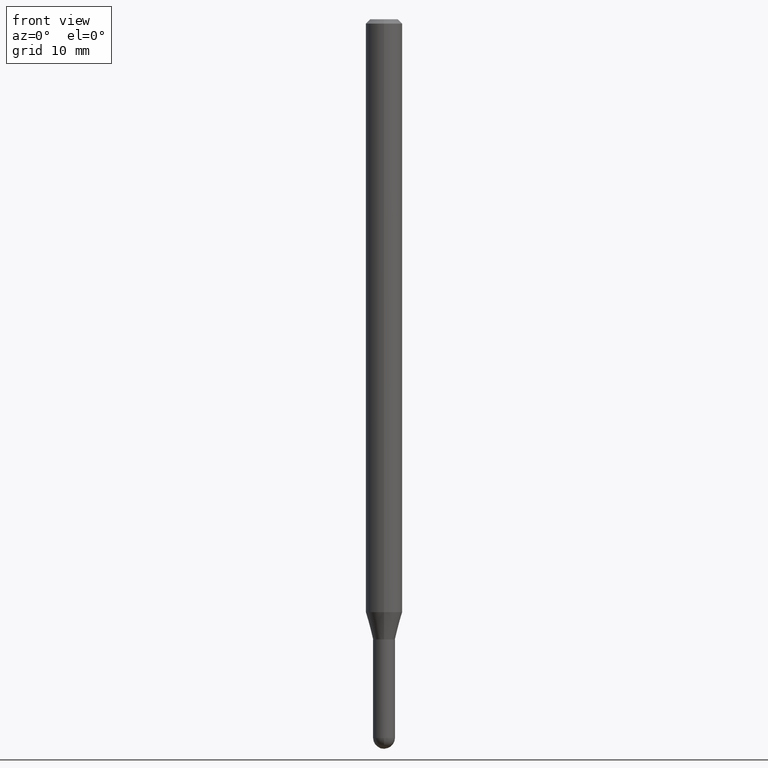
[diagram: clean part render]
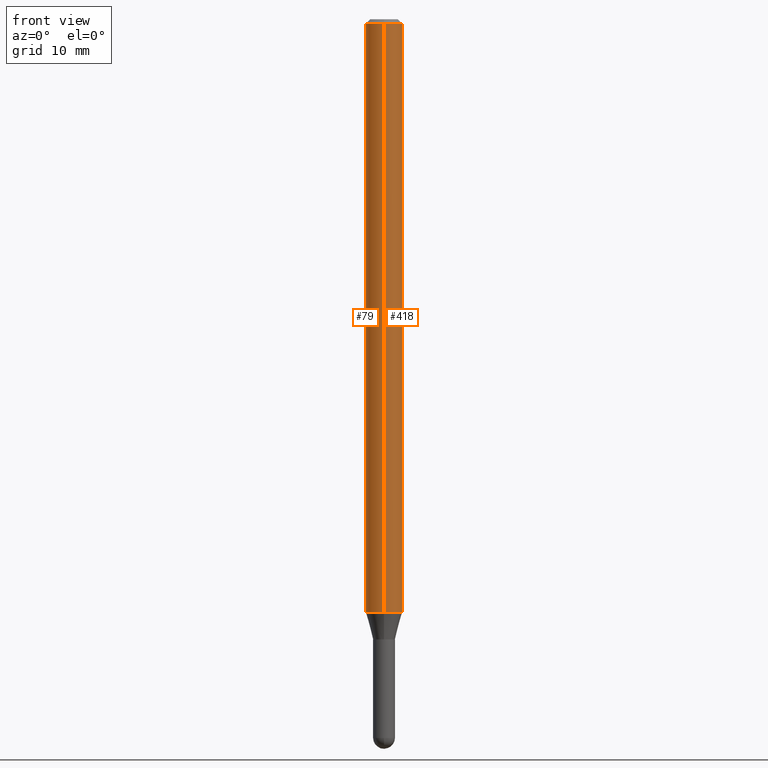
[diagram: same view with one multi-face feature highlighted, each face labeled with its STEP entity id]
A machine part, front view. The highlighted faces form ONE feature: a constant-radius fillet chain: 2 tangent blend faces with common blend radius 1.5875 mm. The faces share edges in the B-rep.
Their STEP definitions:
[1] entity #418 (Cylinder):
#9 = VERTEX_POINT ( 'NONE', #422 ) ;
#10 = CIRCLE ( 'NONE', #150, 0.06250000000000000000 ) ;
#11 = ORIENTED_EDGE ( 'NONE', *, *, #103, .T. ) ;
#47 = FACE_OUTER_BOUND ( 'NONE', #142, .T. ) ;
#48 = EDGE_CURVE ( 'NONE', #9, #226, #148, .T. ) ;
#61 = DIRECTION ( 'NONE',  ( -6.982962677686265922E-15, -1.000000000000000000, 4.370956789862821150E-15 ) ) ;
#74 = LINE ( 'NONE', #440, #400 ) ;
#86 = VECTOR ( 'NONE', #203, 39.37007874015748143 ) ;
#97 = DIRECTION ( 'NONE',  ( -2.445547336512034446E-29, 3.491368878945359210E-15, 1.000000000000000000 ) ) ;
#98 = CARTESIAN_POINT ( 'NONE',  ( 4.440892098501120186E-16, 0.06249999999999287376, -2.031698729810781145 ) ) ;
#103 = EDGE_CURVE ( 'NONE', #226, #408, #74, .T. ) ;
#108 = CARTESIAN_POINT ( 'NONE',  ( 3.668321004768067731E-31, -5.237053318418061988E-17, -0.01500000000000006710 ) ) ;
#142 = EDGE_LOOP ( 'NONE', ( #304, #11, #379, #347 ) ) ;
#148 = CIRCLE ( 'NONE', #436, 0.06250000000000000000 ) ;
#150 = AXIS2_PLACEMENT_3D ( 'NONE', #108, #97, #152 ) ;
#152 = DIRECTION ( 'NONE',  ( -6.982962677686265922E-15, -1.000000000000000000, 3.483106191921935554E-15 ) ) ;
#156 = DIRECTION ( 'NONE',  ( -6.982962677686265922E-15, -1.000000000000000000, 3.491368878945359210E-15 ) ) ;
#203 = DIRECTION ( 'NONE',  ( -2.445547336512034446E-29, 3.491368878945359605E-15, 1.000000000000000000 ) ) ;
#226 = VERTEX_POINT ( 'NONE', #98 ) ;
#274 = CYLINDRICAL_SURFACE ( 'NONE', #290, 0.06250000000000000000 ) ;
#290 = AXIS2_PLACEMENT_3D ( 'NONE', #434, #335, #156 ) ;
#304 = ORIENTED_EDGE ( 'NONE', *, *, #48, .T. ) ;
#318 = CARTESIAN_POINT ( 'NONE',  ( -4.364351673553916201E-16, -0.06250000000000000000, 2.182105549340849507E-16 ) ) ;
#331 = VERTEX_POINT ( 'NONE', #415 ) ;
#335 = DIRECTION ( 'NONE',  ( -2.445547336512034446E-29, 3.491368878945359210E-15, 1.000000000000000000 ) ) ;
#344 = DIRECTION ( 'NONE',  ( -2.445547336512034446E-29, 3.491368878945359210E-15, 1.000000000000000000 ) ) ;
#347 = ORIENTED_EDGE ( 'NONE', *, *, #508, .F. ) ;
#379 = ORIENTED_EDGE ( 'NONE', *, *, #433, .F. ) ;
#400 = VECTOR ( 'NONE', #467, 39.37007874015748143 ) ;
#408 = VERTEX_POINT ( 'NONE', #446 ) ;
#415 = CARTESIAN_POINT ( 'NONE',  ( -4.364351673553912750E-16, -0.06250000000000005551, -0.01499999999999984852 ) ) ;
#418 = ADVANCED_FACE ( 'NONE', ( #47 ), #274, .T. ) ;
#422 = CARTESIAN_POINT ( 'NONE',  ( -4.364351673553422177E-16, -0.06250000000000713318, -2.031698729810780701 ) ) ;
#433 = EDGE_CURVE ( 'NONE', #331, #408, #10, .T. ) ;
#434 = CARTESIAN_POINT ( 'NONE',  ( 0.000000000000000000, 0.000000000000000000, 0.000000000000000000 ) ) ;
#436 = AXIS2_PLACEMENT_3D ( 'NONE', #492, #344, #61 ) ;
#439 = LINE ( 'NONE', #318, #86 ) ;
#440 = CARTESIAN_POINT ( 'NONE',  ( 4.440892098500625669E-16, 0.06250000000000000000, -2.182105549340849507E-16 ) ) ;
#446 = CARTESIAN_POINT ( 'NONE',  ( 4.440892098501125116E-16, 0.06249999999999993755, -0.01500000000000028394 ) ) ;
#467 = DIRECTION ( 'NONE',  ( -2.445547336512034446E-29, 3.491368878945359605E-15, 1.000000000000000000 ) ) ;
#492 = CARTESIAN_POINT ( 'NONE',  ( 4.968615417283638285E-29, -7.093409716654176905E-15, -2.031698729810781145 ) ) ;
#508 = EDGE_CURVE ( 'NONE', #9, #331, #439, .T. ) ;
[2] entity #79 (Cylinder):
#9 = VERTEX_POINT ( 'NONE', #422 ) ;
#49 = ORIENTED_EDGE ( 'NONE', *, *, #508, .T. ) ;
#56 = AXIS2_PLACEMENT_3D ( 'NONE', #366, #482, #378 ) ;
#59 = FACE_OUTER_BOUND ( 'NONE', #222, .T. ) ;
#74 = LINE ( 'NONE', #440, #400 ) ;
#79 = ADVANCED_FACE ( 'NONE', ( #59 ), #228, .T. ) ;
#86 = VECTOR ( 'NONE', #203, 39.37007874015748143 ) ;
#98 = CARTESIAN_POINT ( 'NONE',  ( 4.440892098501120186E-16, 0.06249999999999287376, -2.031698729810781145 ) ) ;
#103 = EDGE_CURVE ( 'NONE', #226, #408, #74, .T. ) ;
#124 = DIRECTION ( 'NONE',  ( -6.982962677686265922E-15, -1.000000000000000000, 3.491368878945359210E-15 ) ) ;
#129 = CIRCLE ( 'NONE', #419, 0.06250000000000000000 ) ;
#176 = ORIENTED_EDGE ( 'NONE', *, *, #427, .F. ) ;
#203 = DIRECTION ( 'NONE',  ( -2.445547336512034446E-29, 3.491368878945359605E-15, 1.000000000000000000 ) ) ;
#217 = EDGE_CURVE ( 'NONE', #226, #9, #375, .T. ) ;
#222 = EDGE_LOOP ( 'NONE', ( #338, #264, #49, #176 ) ) ;
#226 = VERTEX_POINT ( 'NONE', #98 ) ;
#228 = CYLINDRICAL_SURFACE ( 'NONE', #270, 0.06250000000000000000 ) ;
#264 = ORIENTED_EDGE ( 'NONE', *, *, #217, .T. ) ;
#270 = AXIS2_PLACEMENT_3D ( 'NONE', #277, #285, #124 ) ;
#277 = CARTESIAN_POINT ( 'NONE',  ( 0.000000000000000000, 0.000000000000000000, 0.000000000000000000 ) ) ;
#285 = DIRECTION ( 'NONE',  ( -2.445547336512034446E-29, 3.491368878945359210E-15, 1.000000000000000000 ) ) ;
#302 = DIRECTION ( 'NONE',  ( -2.445547336512034446E-29, 3.491368878945359210E-15, 1.000000000000000000 ) ) ;
#318 = CARTESIAN_POINT ( 'NONE',  ( -4.364351673553916201E-16, -0.06250000000000000000, 2.182105549340849507E-16 ) ) ;
#331 = VERTEX_POINT ( 'NONE', #415 ) ;
#338 = ORIENTED_EDGE ( 'NONE', *, *, #103, .F. ) ;
#366 = CARTESIAN_POINT ( 'NONE',  ( 4.968615417283638285E-29, -7.093409716654176905E-15, -2.031698729810781145 ) ) ;
#375 = CIRCLE ( 'NONE', #56, 0.06250000000000000000 ) ;
#378 = DIRECTION ( 'NONE',  ( -6.982962677686265922E-15, -1.000000000000000000, 4.370956789862821150E-15 ) ) ;
#400 = VECTOR ( 'NONE', #467, 39.37007874015748143 ) ;
#408 = VERTEX_POINT ( 'NONE', #446 ) ;
#415 = CARTESIAN_POINT ( 'NONE',  ( -4.364351673553912750E-16, -0.06250000000000005551, -0.01499999999999984852 ) ) ;
#419 = AXIS2_PLACEMENT_3D ( 'NONE', #435, #302, #456 ) ;
#422 = CARTESIAN_POINT ( 'NONE',  ( -4.364351673553422177E-16, -0.06250000000000713318, -2.031698729810780701 ) ) ;
#427 = EDGE_CURVE ( 'NONE', #408, #331, #129, .T. ) ;
#435 = CARTESIAN_POINT ( 'NONE',  ( 3.668321004768067731E-31, -5.237053318418061988E-17, -0.01500000000000006710 ) ) ;
#439 = LINE ( 'NONE', #318, #86 ) ;
#440 = CARTESIAN_POINT ( 'NONE',  ( 4.440892098500625669E-16, 0.06250000000000000000, -2.182105549340849507E-16 ) ) ;
#446 = CARTESIAN_POINT ( 'NONE',  ( 4.440892098501125116E-16, 0.06249999999999993755, -0.01500000000000028394 ) ) ;
#456 = DIRECTION ( 'NONE',  ( -6.982962677686265922E-15, -1.000000000000000000, 3.483106191921935554E-15 ) ) ;
#467 = DIRECTION ( 'NONE',  ( -2.445547336512034446E-29, 3.491368878945359605E-15, 1.000000000000000000 ) ) ;
#482 = DIRECTION ( 'NONE',  ( -2.445547336512034446E-29, 3.491368878945359210E-15, 1.000000000000000000 ) ) ;
#508 = EDGE_CURVE ( 'NONE', #9, #331, #439, .T. ) ;